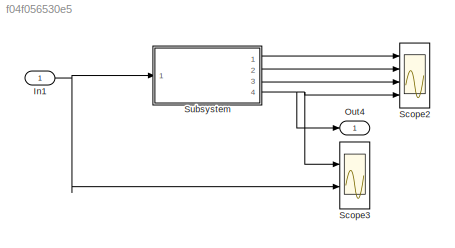
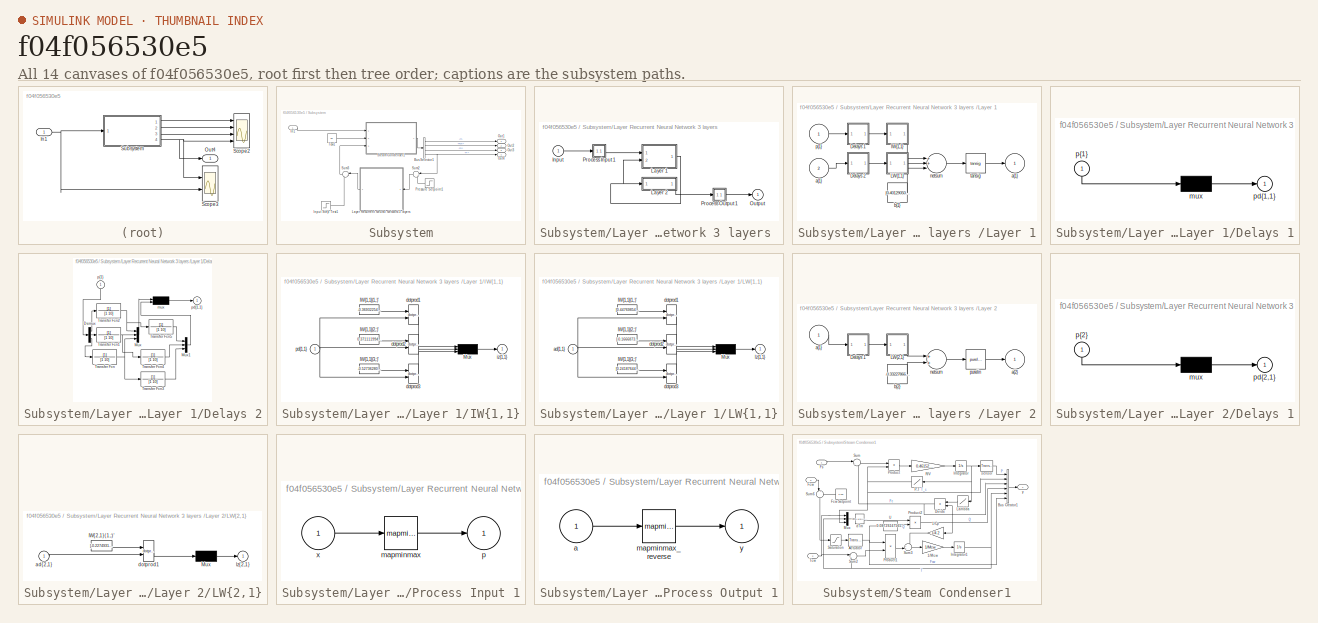
[diagram: thumbnail index - all 14 canvases of the model, root first then tree order]
MODEL slx_f04f056530e5
KIND model
CONFIG AbsTol = auto
CONFIG EnableMultiTasking = off
CONFIG FixedStep = 0.02
CONFIG MaxStep = .1
CONFIG MinStep = auto
CONFIG RelTol = 1e-3
CONFIG SampleTimeConstraint = Unconstrained
CONFIG Solver = VariableStepAuto
CONFIG SolverName = VariableStepAuto
CONFIG StartTime = 0.0
CONFIG StopTime = 40
WORKSPACE source: MAT-file member
WORKSPACE T = [0 0.05 0.1 0.15 0.2 0.25 0.3 0.35 0.4 0.45 0.5 0.55 ... (701 elements, 1x701)]
WORKSPACE U = [4.00260237998 4.00260790346 4.00261482483 4.00262313926 4.00263283344 4.00264388541 4.00265626434 4.0026699304 4.00268483464 4.00270091894 4.00271811597 4.0027363778 ... (701 elements, 1x701)]
BLOCK [Inport] In1
  IconDisplay = Port number
BLOCK [Outport] Out4
  IconDisplay = Port number
BLOCK [Scope] Scope2
  Floating = off
  NumInputPorts = 4
  Ports = [4]
  ScopeSpecificationString = Simulink.scopes.TimeScopeBlockCfg('CurrentConfiguration', extmgr.ConfigurationSet(extmgr.Configuration('Core','General UI',true),extmgr.Configuration('Core','Source UI',true),extmgr.Configuration('Sources','WiredSimulink',true,'DataLogging',true,'DataLoggingSaveFormat','StructureWithTime','DataLoggingDecimation','1','DataLoggingDecimateData',true),extmgr.Configuration('Visuals','Time Domain',true,...<+3699ch>
BLOCK [Scope] Scope3
  Floating = off
  NumInputPorts = 2
  Ports = [2]
  ScopeSpecificationString = Simulink.scopes.TimeScopeBlockCfg('CurrentConfiguration', extmgr.ConfigurationSet(extmgr.Configuration('Core','General UI',true),extmgr.Configuration('Core','Source UI',true),extmgr.Configuration('Sources','WiredSimulink',true,'DataLogging',true,'DataLoggingSaveFormat','StructureWithTime','DataLoggingDecimation','1','DataLoggingDecimateData',true,'DataLoggingVariableName','ScopeData1'),extmgr.Conf...<+2231ch>
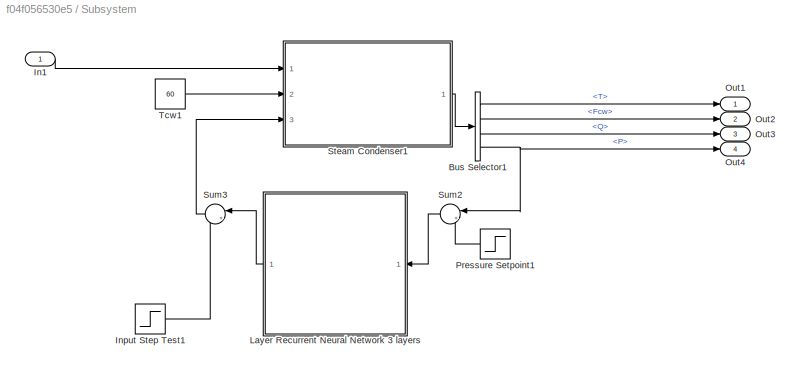
BLOCK [SubSystem] Subsystem
  Ports = [1, 4]
  RequestExecContextInheritance = off
BLOCK [BusSelector] Subsystem/Bus Selector1
  OutputAsBus = off
  OutputSignals = T,Fcw,Q,P
  Ports = [1, 4]
BLOCK [Inport] Subsystem/In1
  IconDisplay = Port number
BLOCK [Step] Subsystem/Input Step Test1
  After = 0
  SampleTime = 0
  Time = 10
BLOCK [SubSystem] Subsystem/Layer Recurrent Neural Network 3 layers 
  Ports = [1, 1]
  RequestExecContextInheritance = off
BLOCK [Inport] Subsystem/Layer Recurrent Neural Network 3 layers /Input
  IconDisplay = Port number
  PortDimensions = 1
BLOCK [SubSystem] Subsystem/Layer Recurrent Neural Network 3 layers /Layer 1
  Ports = [2, 1]
  RequestExecContextInheritance = off
BLOCK [SubSystem] Subsystem/Layer Recurrent Neural Network 3 layers /Layer 1/Delays 1
  Ports = [1, 1]
  RequestExecContextInheritance = off
BLOCK [Mux] Subsystem/Layer Recurrent Neural Network 3 layers /Layer 1/Delays 1/mux
  Inputs = 1
  Ports = [1, 1]
BLOCK [Outport] Subsystem/Layer Recurrent Neural Network 3 layers /Layer 1/Delays 1/pd{1,1}
  IconDisplay = Port number
BLOCK [Inport] Subsystem/Layer Recurrent Neural Network 3 layers /Layer 1/Delays 1/p{1}
  IconDisplay = Port number
  PortDimensions = 1
BLOCK [SubSystem] Subsystem/Layer Recurrent Neural Network 3 layers /Layer 1/Delays 2
  Ports = [1, 1]
  RequestExecContextInheritance = off
BLOCK [Demux] Subsystem/Layer Recurrent Neural Network 3 layers /Layer 1/Delays 2/Demux
  DisplayOption = bar
  Outputs = 3
  Ports = [1, 3]
BLOCK [Mux] Subsystem/Layer Recurrent Neural Network 3 layers /Layer 1/Delays 2/Mux
  DisplayOption = bar
  Inputs = 3
  Ports = [3, 1]
BLOCK [Mux] Subsystem/Layer Recurrent Neural Network 3 layers /Layer 1/Delays 2/Mux1
  DisplayOption = bar
  Inputs = 3
  Ports = [3, 1]
BLOCK [TransferFcn] Subsystem/Layer Recurrent Neural Network 3 layers /Layer 1/Delays 2/Transfer Fcn
  Denominator = [1 10]
BLOCK [TransferFcn] Subsystem/Layer Recurrent Neural Network 3 layers /Layer 1/Delays 2/Transfer Fcn1
  Denominator = [1 10]
BLOCK [TransferFcn] Subsystem/Layer Recurrent Neural Network 3 layers /Layer 1/Delays 2/Transfer Fcn2
  Denominator = [1 10]
BLOCK [TransferFcn] Subsystem/Layer Recurrent Neural Network 3 layers /Layer 1/Delays 2/Transfer Fcn3
  Denominator = [1 10]
BLOCK [TransferFcn] Subsystem/Layer Recurrent Neural Network 3 layers /Layer 1/Delays 2/Transfer Fcn4
  Denominator = [1 10]
BLOCK [TransferFcn] Subsystem/Layer Recurrent Neural Network 3 layers /Layer 1/Delays 2/Transfer Fcn5
  Denominator = [1 10]
BLOCK [Mux] Subsystem/Layer Recurrent Neural Network 3 layers /Layer 1/Delays 2/mux
  Inputs = 2
  Ports = [2, 1]
BLOCK [Outport] Subsystem/Layer Recurrent Neural Network 3 layers /Layer 1/Delays 2/pd{1,1}
  IconDisplay = Port number
BLOCK [Inport] Subsystem/Layer Recurrent Neural Network 3 layers /Layer 1/Delays 2/p{1}
  IconDisplay = Port number
  PortDimensions = 3
BLOCK [SubSystem] Subsystem/Layer Recurrent Neural Network 3 layers /Layer 1/IW{1,1}
  Ports = [1, 1]
  RequestExecContextInheritance = off
BLOCK [Constant] Subsystem/Layer Recurrent Neural Network 3 layers /Layer 1/IW{1,1}/IW{1,1}(1,:)'
  Value = -0.36932254958803395
BLOCK [Constant] Subsystem/Layer Recurrent Neural Network 3 layers /Layer 1/IW{1,1}/IW{1,1}(2,:)'
  Value = 0.37111199431650393
BLOCK [Constant] Subsystem/Layer Recurrent Neural Network 3 layers /Layer 1/IW{1,1}/IW{1,1}(3,:)'
  Value = -0.52736280584118833
BLOCK [Mux] Subsystem/Layer Recurrent Neural Network 3 layers /Layer 1/IW{1,1}/Mux
  Inputs = 3
  Ports = [3, 1]
BLOCK [Reference] Subsystem/Layer Recurrent Neural Network 3 layers /Layer 1/IW{1,1}/dotprod1  REF=neural/Weight Functions/dotprod
  Ports = [2, 1]
  SourceBlock = neural/Weight Functions/dotprod
  SourceProductBaseCode = NN
  SourceProductName = Deep Learning Toolbox
  SourceType = DOTPROD
BLOCK [Reference] Subsystem/Layer Recurrent Neural Network 3 layers /Layer 1/IW{1,1}/dotprod2  REF=neural/Weight Functions/dotprod
  Ports = [2, 1]
  SourceBlock = neural/Weight Functions/dotprod
  SourceProductBaseCode = NN
  SourceProductName = Deep Learning Toolbox
  SourceType = DOTPROD
BLOCK [Reference] Subsystem/Layer Recurrent Neural Network 3 layers /Layer 1/IW{1,1}/dotprod3  REF=neural/Weight Functions/dotprod
  Ports = [2, 1]
  SourceBlock = neural/Weight Functions/dotprod
  SourceProductBaseCode = NN
  SourceProductName = Deep Learning Toolbox
  SourceType = DOTPROD
BLOCK [Outport] Subsystem/Layer Recurrent Neural Network 3 layers /Layer 1/IW{1,1}/iz{1,1}
  IconDisplay = Port number
BLOCK [Inport] Subsystem/Layer Recurrent Neural Network 3 layers /Layer 1/IW{1,1}/pd{1,1}
  IconDisplay = Port number
  PortDimensions = 1
BLOCK [SubSystem] Subsystem/Layer Recurrent Neural Network 3 layers /Layer 1/LW{1,1}
  Ports = [1, 1]
  RequestExecContextInheritance = off
BLOCK [Constant] Subsystem/Layer Recurrent Neural Network 3 layers /Layer 1/LW{1,1}/IW{1,1}(1,:)'
  Value = [0.44769854454577174;1.1961840315574388;1.1412233787458486;0.72001623019786209;-0.37547125154051064;-0.61546760904874331]
BLOCK [Constant] Subsystem/Layer Recurrent Neural Network 3 layers /Layer 1/LW{1,1}/IW{1,1}(2,:)'
  Value = [-0.16668730359454359;-0.016432941671533533;-0.22132796342367161;-0.037206224095552992;0.059874671921603305;0.080202592729115826]
BLOCK [Constant] Subsystem/Layer Recurrent Neural Network 3 layers /Layer 1/LW{1,1}/IW{1,1}(3,:)'
  Value = [0.24187644262601646;-0.66963285238228187;-1.0984401489322673;0.029109804692608397;1.3722216833345802;0.66166906669524039]
BLOCK [Mux] Subsystem/Layer Recurrent Neural Network 3 layers /Layer 1/LW{1,1}/Mux
  Inputs = 3
  Ports = [3, 1]
BLOCK [Inport] Subsystem/Layer Recurrent Neural Network 3 layers /Layer 1/LW{1,1}/ad{1,1}
  IconDisplay = Port number
  PortDimensions = 6
BLOCK [Reference] Subsystem/Layer Recurrent Neural Network 3 layers /Layer 1/LW{1,1}/dotprod1  REF=neural/Weight Functions/dotprod
  Ports = [2, 1]
  SourceBlock = neural/Weight Functions/dotprod
  SourceProductBaseCode = NN
  SourceProductName = Deep Learning Toolbox
  SourceType = DOTPROD
BLOCK [Reference] Subsystem/Layer Recurrent Neural Network 3 layers /Layer 1/LW{1,1}/dotprod2  REF=neural/Weight Functions/dotprod
  Ports = [2, 1]
  SourceBlock = neural/Weight Functions/dotprod
  SourceProductBaseCode = NN
  SourceProductName = Deep Learning Toolbox
  SourceType = DOTPROD
BLOCK [Reference] Subsystem/Layer Recurrent Neural Network 3 layers /Layer 1/LW{1,1}/dotprod3  REF=neural/Weight Functions/dotprod
  Ports = [2, 1]
  SourceBlock = neural/Weight Functions/dotprod
  SourceProductBaseCode = NN
  SourceProductName = Deep Learning Toolbox
  SourceType = DOTPROD
BLOCK [Outport] Subsystem/Layer Recurrent Neural Network 3 layers /Layer 1/LW{1,1}/lz{1,1}
  IconDisplay = Port number
BLOCK [Outport] Subsystem/Layer Recurrent Neural Network 3 layers /Layer 1/a{1}
  IconDisplay = Port number
  InitialOutput = [0;0;0]
BLOCK [Inport] Subsystem/Layer Recurrent Neural Network 3 layers /Layer 1/a{1} 
  IconDisplay = Port number
  Port = 2
  PortDimensions = 3
BLOCK [Constant] Subsystem/Layer Recurrent Neural Network 3 layers /Layer 1/b{1}
  Value = [0.40129050296348601;-0.12475735064274925;-1.3584541012442735]
BLOCK [Sum] Subsystem/Layer Recurrent Neural Network 3 layers /Layer 1/netsum
  Inputs = 3
  Ports = [3, 1]
BLOCK [Inport] Subsystem/Layer Recurrent Neural Network 3 layers /Layer 1/p{1}
  IconDisplay = Port number
  PortDimensions = 1
BLOCK [Reference] Subsystem/Layer Recurrent Neural Network 3 layers /Layer 1/tansig  REF=neural/Transfer Functions/tansig
  Ports = [1, 1]
  SourceBlock = neural/Transfer Functions/tansig
  SourceProductBaseCode = NN
  SourceProductName = Deep Learning Toolbox
  SourceType = TANSIG
BLOCK [SubSystem] Subsystem/Layer Recurrent Neural Network 3 layers /Layer 2
  Ports = [1, 1]
  RequestExecContextInheritance = off
BLOCK [SubSystem] Subsystem/Layer Recurrent Neural Network 3 layers /Layer 2/Delays 1
  Ports = [1, 1]
  RequestExecContextInheritance = off
BLOCK [Mux] Subsystem/Layer Recurrent Neural Network 3 layers /Layer 2/Delays 1/mux
  Inputs = 1
  Ports = [1, 1]
BLOCK [Outport] Subsystem/Layer Recurrent Neural Network 3 layers /Layer 2/Delays 1/pd{2,1}
  IconDisplay = Port number
BLOCK [Inport] Subsystem/Layer Recurrent Neural Network 3 layers /Layer 2/Delays 1/p{2}
  IconDisplay = Port number
  PortDimensions = 3
BLOCK [SubSystem] Subsystem/Layer Recurrent Neural Network 3 layers /Layer 2/LW{2,1}
  Ports = [1, 1]
  RequestExecContextInheritance = off
BLOCK [Constant] Subsystem/Layer Recurrent Neural Network 3 layers /Layer 2/LW{2,1}/IW{2,1}(1,:)'
  Value = [-0.22749313555095124;2.0804967759906643;-0.56644809886208158]
BLOCK [Mux] Subsystem/Layer Recurrent Neural Network 3 layers /Layer 2/LW{2,1}/Mux
  Inputs = 1
  Ports = [1, 1]
BLOCK [Inport] Subsystem/Layer Recurrent Neural Network 3 layers /Layer 2/LW{2,1}/ad{2,1}
  IconDisplay = Port number
  PortDimensions = 3
BLOCK [Reference] Subsystem/Layer Recurrent Neural Network 3 layers /Layer 2/LW{2,1}/dotprod1  REF=neural/Weight Functions/dotprod
  Ports = [2, 1]
  SourceBlock = neural/Weight Functions/dotprod
  SourceProductBaseCode = NN
  SourceProductName = Deep Learning Toolbox
  SourceType = DOTPROD
BLOCK [Outport] Subsystem/Layer Recurrent Neural Network 3 layers /Layer 2/LW{2,1}/lz{2,1}
  IconDisplay = Port number
BLOCK [Inport] Subsystem/Layer Recurrent Neural Network 3 layers /Layer 2/a{1} 
  IconDisplay = Port number
  PortDimensions = 3
BLOCK [Outport] Subsystem/Layer Recurrent Neural Network 3 layers /Layer 2/a{2}
  IconDisplay = Port number
  InitialOutput = 0
BLOCK [Constant] Subsystem/Layer Recurrent Neural Network 3 layers /Layer 2/b{2}
  Value = -0.33227866684137108
BLOCK [Sum] Subsystem/Layer Recurrent Neural Network 3 layers /Layer 2/netsum
  Inputs = 2
  Ports = [2, 1]
BLOCK [Reference] Subsystem/Layer Recurrent Neural Network 3 layers /Layer 2/purelin  REF=neural/Transfer Functions/purelin
  Ports = [1, 1]
  SourceBlock = neural/Transfer Functions/purelin
  SourceProductBaseCode = NN
  SourceProductName = Deep Learning Toolbox
  SourceType = PURELIN
BLOCK [Outport] Subsystem/Layer Recurrent Neural Network 3 layers /Output
  IconDisplay = Port number
  InitialOutput = 0
BLOCK [SubSystem] Subsystem/Layer Recurrent Neural Network 3 layers /Process Input 1
  Ports = [1, 1]
  RequestExecContextInheritance = off
BLOCK [Reference] Subsystem/Layer Recurrent Neural Network 3 layers /Process Input 1/mapminmax  REF=neural/Processing Functions/mapminmax
  Ports = [1, 1]
  SourceBlock = neural/Processing Functions/mapminmax
  SourceProductBaseCode = NN
  SourceProductName = Deep Learning Toolbox
  SourceType = MAPMINMAX Preprocess
BLOCK [Outport] Subsystem/Layer Recurrent Neural Network 3 layers /Process Input 1/p
  IconDisplay = Port number
  PortDimensions = 1
BLOCK [Inport] Subsystem/Layer Recurrent Neural Network 3 layers /Process Input 1/x
  IconDisplay = Port number
  PortDimensions = 1
BLOCK [SubSystem] Subsystem/Layer Recurrent Neural Network 3 layers /Process Output 1
  Ports = [1, 1]
  RequestExecContextInheritance = off
BLOCK [Inport] Subsystem/Layer Recurrent Neural Network 3 layers /Process Output 1/a
  IconDisplay = Port number
  PortDimensions = 1
BLOCK [Reference] Subsystem/Layer Recurrent Neural Network 3 layers /Process Output 1/mapminmax_reverse  REF=neural/Processing Functions/mapminmax_reverse
  Ports = [1, 1]
  SourceBlock = neural/Processing Functions/mapminmax_reverse
  SourceProductBaseCode = NN
  SourceProductName = Deep Learning Toolbox
  SourceType = MAPMINMAX Reverse Process
BLOCK [Outport] Subsystem/Layer Recurrent Neural Network 3 layers /Process Output 1/y
  IconDisplay = Port number
  PortDimensions = 1
BLOCK [Outport] Subsystem/Out1
  IconDisplay = Port number
BLOCK [Outport] Subsystem/Out2
  IconDisplay = Port number
  Port = 2
BLOCK [Outport] Subsystem/Out3
  IconDisplay = Port number
  Port = 3
BLOCK [Outport] Subsystem/Out4
  IconDisplay = Port number
  Port = 4
BLOCK [Step] Subsystem/Pressure Setpoint1
  After = 87
  Before = 90
  SampleTime = 0
  Time = 2
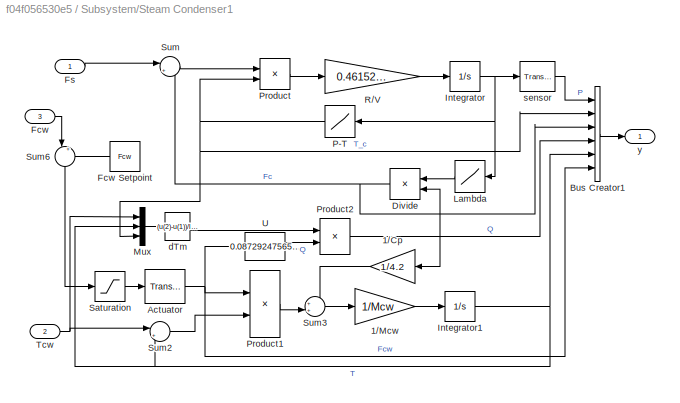
BLOCK [SubSystem] Subsystem/Steam Condenser1
  Ports = [3, 1]
  RequestExecContextInheritance = off
BLOCK [Gain] Subsystem/Steam Condenser1/1//Cp
  Gain = 1/4.2
  SaturateOnIntegerOverflow = off
BLOCK [Gain] Subsystem/Steam Condenser1/1//Mcw
  Gain = 1/Mcw
  SaturateOnIntegerOverflow = off
BLOCK [Reference] Subsystem/Steam Condenser1/Actuator  REF=simulink_extras/Additional
Linear/Transfer Fcn
(with initial outputs)
  Ports = [1, 1]
  SourceBlock = simulink_extras/Additional\nLinear/Transfer Fcn\n(with initial outputs)
  SourceProductBaseCode = SL
  SourceProductName = Simulink
  SourceType = Transfer Function with Initial Outputs
BLOCK [BusCreator] Subsystem/Steam Condenser1/Bus Creator1
  DisplayOption = bar
  InheritFromInputs = on
  Inputs = 6
  Ports = [6, 1]
BLOCK [Product] Subsystem/Steam Condenser1/Divide
  Inputs = /*
  Ports = [2, 1]
  SaturateOnIntegerOverflow = off
BLOCK [Inport] Subsystem/Steam Condenser1/Fcw
  IconDisplay = Port number
  Port = 3
BLOCK [Constant] Subsystem/Steam Condenser1/Fcw Setpoint
  Value = Fcw
BLOCK [Inport] Subsystem/Steam Condenser1/Fs
  IconDisplay = Port number
BLOCK [Integrator] Subsystem/Steam Condenser1/Integrator
  InitialCondition = P
  Ports = [1, 1]
BLOCK [Integrator] Subsystem/Steam Condenser1/Integrator1
  InitialCondition = T
  Ports = [1, 1]
BLOCK [Lookup] Subsystem/Steam Condenser1/Lambda
  InputValues = [50 60 70 80 90 100 110]
  Table = [2305.42 2293.64 2283.30 2274.05 2265.65 2257.92 2250.76]
BLOCK [Mux] Subsystem/Steam Condenser1/Mux
  DisplayOption = bar
  Inputs = 3
  Ports = [3, 1]
BLOCK [Lookup] Subsystem/Steam Condenser1/P-T
  InputValues = [50 60 70 80 90 100 110]
  Table = [81.3167 85.9258 89.9315 93.4854 96.6870 99.6059 102.2923]
BLOCK [Product] Subsystem/Steam Condenser1/Product
  Ports = [2, 1]
  SaturateOnIntegerOverflow = off
BLOCK [Product] Subsystem/Steam Condenser1/Product1
  Ports = [2, 1]
  SaturateOnIntegerOverflow = off
BLOCK [Product] Subsystem/Steam Condenser1/Product2
  Inputs = */
  Ports = [2, 1]
  SaturateOnIntegerOverflow = off
BLOCK [Gain] Subsystem/Steam Condenser1/R//V
  Gain = 0.461526/V
  SaturateOnIntegerOverflow = off
BLOCK [Saturate] Subsystem/Steam Condenser1/Saturation
  InputPortMap = u0
  LowerLimit = 0
  Ports = [1, 1]
  UpperLimit = 200
BLOCK [Sum] Subsystem/Steam Condenser1/Sum
  IconShape = round
  Inputs = |+-
  Ports = [2, 1]
  SaturateOnIntegerOverflow = off
BLOCK [Sum] Subsystem/Steam Condenser1/Sum2
  IconShape = round
  Inputs = |+-
  Ports = [2, 1]
  SaturateOnIntegerOverflow = off
BLOCK [Sum] Subsystem/Steam Condenser1/Sum3
  IconShape = round
  Inputs = ++|
  Ports = [2, 1]
  SaturateOnIntegerOverflow = off
BLOCK [Sum] Subsystem/Steam Condenser1/Sum6
  IconShape = round
  Inputs = |++
  Ports = [2, 1]
  SaturateOnIntegerOverflow = off
BLOCK [Inport] Subsystem/Steam Condenser1/Tcw
  IconDisplay = Port number
  Port = 2
BLOCK [Fcn] Subsystem/Steam Condenser1/U
  Expr = 0.0872924756541668/u^0.8+0.00073786772008033
BLOCK [Fcn] Subsystem/Steam Condenser1/dTm
  Expr = (u(2)-u(1))/log((u(3)-u(1))/(u(3)-u(2)))
BLOCK [Reference] Subsystem/Steam Condenser1/sensor  REF=simulink_extras/Additional
Linear/Transfer Fcn
(with initial outputs)
  Ports = [1, 1]
  SourceBlock = simulink_extras/Additional\nLinear/Transfer Fcn\n(with initial outputs)
  SourceProductBaseCode = SL
  SourceProductName = Simulink
  SourceType = Transfer Function with Initial Outputs
BLOCK [Outport] Subsystem/Steam Condenser1/y
  IconDisplay = Port number
BLOCK [Sum] Subsystem/Sum2
  IconShape = round
  Inputs = |+-
  Ports = [2, 1]
  SaturateOnIntegerOverflow = off
BLOCK [Sum] Subsystem/Sum3
  IconShape = round
  Inputs = |++
  Ports = [2, 1]
  SaturateOnIntegerOverflow = off
BLOCK [Constant] Subsystem/Tcw1
  Value = 60
  VectorParams1D = off
NET In1:1 -> Scope3:2, Subsystem:1
LINE Subsystem/Bus Selector1:1 -> Subsystem/Out1:1
LINE Subsystem/Bus Selector1:2 -> Subsystem/Out2:1
LINE Subsystem/Bus Selector1:3 -> Subsystem/Out3:1
NET Subsystem/Bus Selector1:4 -> Subsystem/Out4:1, Subsystem/Sum2:1
LINE Subsystem/In1:1 -> Subsystem/Steam Condenser1:1
LINE Subsystem/Input Step Test1:1 -> Subsystem/Sum3:2
LINE Subsystem/Layer Recurrent Neural Network 3 layers /Input:1 -> Subsystem/Layer Recurrent Neural Network 3 layers /Process Input 1:1
LINE Subsystem/Layer Recurrent Neural Network 3 layers /Layer 1/Delays 1/mux:1 -> Subsystem/Layer Recurrent Neural Network 3 layers /Layer 1/Delays 1/pd{1,1}:1
LINE Subsystem/Layer Recurrent Neural Network 3 layers /Layer 1/Delays 1/p{1}:1 -> Subsystem/Layer Recurrent Neural Network 3 layers /Layer 1/Delays 1/mux:1
LINE Subsystem/Layer Recurrent Neural Network 3 layers /Layer 1/Delays 1:1 -> Subsystem/Layer Recurrent Neural Network 3 layers /Layer 1/IW{1,1}:1
LINE Subsystem/Layer Recurrent Neural Network 3 layers /Layer 1/Delays 2/Demux:1 -> Subsystem/Layer Recurrent Neural Network 3 layers /Layer 1/Delays 2/Transfer Fcn2:1
LINE Subsystem/Layer Recurrent Neural Network 3 layers /Layer 1/Delays 2/Demux:2 -> Subsystem/Layer Recurrent Neural Network 3 layers /Layer 1/Delays 2/Transfer Fcn1:1
LINE Subsystem/Layer Recurrent Neural Network 3 layers /Layer 1/Delays 2/Demux:3 -> Subsystem/Layer Recurrent Neural Network 3 layers /Layer 1/Delays 2/Transfer Fcn:1
LINE Subsystem/Layer Recurrent Neural Network 3 layers /Layer 1/Delays 2/Mux1:1 -> Subsystem/Layer Recurrent Neural Network 3 layers /Layer 1/Delays 2/mux:2
LINE Subsystem/Layer Recurrent Neural Network 3 layers /Layer 1/Delays 2/Mux:1 -> Subsystem/Layer Recurrent Neural Network 3 layers /Layer 1/Delays 2/mux:1
NET Subsystem/Layer Recurrent Neural Network 3 layers /Layer 1/Delays 2/Transfer Fcn1:1 -> Subsystem/Layer Recurrent Neural Network 3 layers /Layer 1/Delays 2/Mux:2, Subsystem/Layer Recurrent Neural Network 3 layers /Layer 1/Delays 2/Transfer Fcn4:1
NET Subsystem/Layer Recurrent Neural Network 3 layers /Layer 1/Delays 2/Transfer Fcn2:1 -> Subsystem/Layer Recurrent Neural Network 3 layers /Layer 1/Delays 2/Mux:1, Subsystem/Layer Recurrent Neural Network 3 layers /Layer 1/Delays 2/Transfer Fcn5:1
LINE Subsystem/Layer Recurrent Neural Network 3 layers /Layer 1/Delays 2/Transfer Fcn3:1 -> Subsystem/Layer Recurrent Neural Network 3 layers /Layer 1/Delays 2/Mux1:3
LINE Subsystem/Layer Recurrent Neural Network 3 layers /Layer 1/Delays 2/Transfer Fcn4:1 -> Subsystem/Layer Recurrent Neural Network 3 layers /Layer 1/Delays 2/Mux1:2
LINE Subsystem/Layer Recurrent Neural Network 3 layers /Layer 1/Delays 2/Transfer Fcn5:1 -> Subsystem/Layer Recurrent Neural Network 3 layers /Layer 1/Delays 2/Mux1:1
NET Subsystem/Layer Recurrent Neural Network 3 layers /Layer 1/Delays 2/Transfer Fcn:1 -> Subsystem/Layer Recurrent Neural Network 3 layers /Layer 1/Delays 2/Mux:3, Subsystem/Layer Recurrent Neural Network 3 layers /Layer 1/Delays 2/Transfer Fcn3:1
LINE Subsystem/Layer Recurrent Neural Network 3 layers /Layer 1/Delays 2/mux:1 -> Subsystem/Layer Recurrent Neural Network 3 layers /Layer 1/Delays 2/pd{1,1}:1
LINE Subsystem/Layer Recurrent Neural Network 3 layers /Layer 1/Delays 2/p{1}:1 -> Subsystem/Layer Recurrent Neural Network 3 layers /Layer 1/Delays 2/Demux:1
LINE Subsystem/Layer Recurrent Neural Network 3 layers /Layer 1/Delays 2:1 -> Subsystem/Layer Recurrent Neural Network 3 layers /Layer 1/LW{1,1}:1
LINE Subsystem/Layer Recurrent Neural Network 3 layers /Layer 1/IW{1,1}/IW{1,1}(1,:)':1 -> Subsystem/Layer Recurrent Neural Network 3 layers /Layer 1/IW{1,1}/dotprod1:1
LINE Subsystem/Layer Recurrent Neural Network 3 layers /Layer 1/IW{1,1}/IW{1,1}(2,:)':1 -> Subsystem/Layer Recurrent Neural Network 3 layers /Layer 1/IW{1,1}/dotprod2:1
LINE Subsystem/Layer Recurrent Neural Network 3 layers /Layer 1/IW{1,1}/IW{1,1}(3,:)':1 -> Subsystem/Layer Recurrent Neural Network 3 layers /Layer 1/IW{1,1}/dotprod3:1
LINE Subsystem/Layer Recurrent Neural Network 3 layers /Layer 1/IW{1,1}/Mux:1 -> Subsystem/Layer Recurrent Neural Network 3 layers /Layer 1/IW{1,1}/iz{1,1}:1
LINE Subsystem/Layer Recurrent Neural Network 3 layers /Layer 1/IW{1,1}/dotprod1:1 -> Subsystem/Layer Recurrent Neural Network 3 layers /Layer 1/IW{1,1}/Mux:1
LINE Subsystem/Layer Recurrent Neural Network 3 layers /Layer 1/IW{1,1}/dotprod2:1 -> Subsystem/Layer Recurrent Neural Network 3 layers /Layer 1/IW{1,1}/Mux:2
LINE Subsystem/Layer Recurrent Neural Network 3 layers /Layer 1/IW{1,1}/dotprod3:1 -> Subsystem/Layer Recurrent Neural Network 3 layers /Layer 1/IW{1,1}/Mux:3
NET Subsystem/Layer Recurrent Neural Network 3 layers /Layer 1/IW{1,1}/pd{1,1}:1 -> Subsystem/Layer Recurrent Neural Network 3 layers /Layer 1/IW{1,1}/dotprod1:2, Subsystem/Layer Recurrent Neural Network 3 layers /Layer 1/IW{1,1}/dotprod2:2, Subsystem/Layer Recurrent Neural Network 3 layers /Layer 1/IW{1,1}/dotprod3:2
LINE Subsystem/Layer Recurrent Neural Network 3 layers /Layer 1/IW{1,1}:1 -> Subsystem/Layer Recurrent Neural Network 3 layers /Layer 1/netsum:1
LINE Subsystem/Layer Recurrent Neural Network 3 layers /Layer 1/LW{1,1}/IW{1,1}(1,:)':1 -> Subsystem/Layer Recurrent Neural Network 3 layers /Layer 1/LW{1,1}/dotprod1:1
LINE Subsystem/Layer Recurrent Neural Network 3 layers /Layer 1/LW{1,1}/IW{1,1}(2,:)':1 -> Subsystem/Layer Recurrent Neural Network 3 layers /Layer 1/LW{1,1}/dotprod2:1
LINE Subsystem/Layer Recurrent Neural Network 3 layers /Layer 1/LW{1,1}/IW{1,1}(3,:)':1 -> Subsystem/Layer Recurrent Neural Network 3 layers /Layer 1/LW{1,1}/dotprod3:1
LINE Subsystem/Layer Recurrent Neural Network 3 layers /Layer 1/LW{1,1}/Mux:1 -> Subsystem/Layer Recurrent Neural Network 3 layers /Layer 1/LW{1,1}/lz{1,1}:1
NET Subsystem/Layer Recurrent Neural Network 3 layers /Layer 1/LW{1,1}/ad{1,1}:1 -> Subsystem/Layer Recurrent Neural Network 3 layers /Layer 1/LW{1,1}/dotprod1:2, Subsystem/Layer Recurrent Neural Network 3 layers /Layer 1/LW{1,1}/dotprod2:2, Subsystem/Layer Recurrent Neural Network 3 layers /Layer 1/LW{1,1}/dotprod3:2
LINE Subsystem/Layer Recurrent Neural Network 3 layers /Layer 1/LW{1,1}/dotprod1:1 -> Subsystem/Layer Recurrent Neural Network 3 layers /Layer 1/LW{1,1}/Mux:1
LINE Subsystem/Layer Recurrent Neural Network 3 layers /Layer 1/LW{1,1}/dotprod2:1 -> Subsystem/Layer Recurrent Neural Network 3 layers /Layer 1/LW{1,1}/Mux:2
LINE Subsystem/Layer Recurrent Neural Network 3 layers /Layer 1/LW{1,1}/dotprod3:1 -> Subsystem/Layer Recurrent Neural Network 3 layers /Layer 1/LW{1,1}/Mux:3
LINE Subsystem/Layer Recurrent Neural Network 3 layers /Layer 1/LW{1,1}:1 -> Subsystem/Layer Recurrent Neural Network 3 layers /Layer 1/netsum:2
LINE Subsystem/Layer Recurrent Neural Network 3 layers /Layer 1/a{1} :1 -> Subsystem/Layer Recurrent Neural Network 3 layers /Layer 1/Delays 2:1
LINE Subsystem/Layer Recurrent Neural Network 3 layers /Layer 1/b{1}:1 -> Subsystem/Layer Recurrent Neural Network 3 layers /Layer 1/netsum:3
LINE Subsystem/Layer Recurrent Neural Network 3 layers /Layer 1/netsum:1 -> Subsystem/Layer Recurrent Neural Network 3 layers /Layer 1/tansig:1
LINE Subsystem/Layer Recurrent Neural Network 3 layers /Layer 1/p{1}:1 -> Subsystem/Layer Recurrent Neural Network 3 layers /Layer 1/Delays 1:1
LINE Subsystem/Layer Recurrent Neural Network 3 layers /Layer 1/tansig:1 -> Subsystem/Layer Recurrent Neural Network 3 layers /Layer 1/a{1}:1
NET Subsystem/Layer Recurrent Neural Network 3 layers /Layer 1:1 -> Subsystem/Layer Recurrent Neural Network 3 layers /Layer 1:2, Subsystem/Layer Recurrent Neural Network 3 layers /Layer 2:1
LINE Subsystem/Layer Recurrent Neural Network 3 layers /Layer 2/Delays 1/mux:1 -> Subsystem/Layer Recurrent Neural Network 3 layers /Layer 2/Delays 1/pd{2,1}:1
LINE Subsystem/Layer Recurrent Neural Network 3 layers /Layer 2/Delays 1/p{2}:1 -> Subsystem/Layer Recurrent Neural Network 3 layers /Layer 2/Delays 1/mux:1
LINE Subsystem/Layer Recurrent Neural Network 3 layers /Layer 2/Delays 1:1 -> Subsystem/Layer Recurrent Neural Network 3 layers /Layer 2/LW{2,1}:1
LINE Subsystem/Layer Recurrent Neural Network 3 layers /Layer 2/LW{2,1}/IW{2,1}(1,:)':1 -> Subsystem/Layer Recurrent Neural Network 3 layers /Layer 2/LW{2,1}/dotprod1:1
LINE Subsystem/Layer Recurrent Neural Network 3 layers /Layer 2/LW{2,1}/Mux:1 -> Subsystem/Layer Recurrent Neural Network 3 layers /Layer 2/LW{2,1}/lz{2,1}:1
LINE Subsystem/Layer Recurrent Neural Network 3 layers /Layer 2/LW{2,1}/ad{2,1}:1 -> Subsystem/Layer Recurrent Neural Network 3 layers /Layer 2/LW{2,1}/dotprod1:2
LINE Subsystem/Layer Recurrent Neural Network 3 layers /Layer 2/LW{2,1}/dotprod1:1 -> Subsystem/Layer Recurrent Neural Network 3 layers /Layer 2/LW{2,1}/Mux:1
LINE Subsystem/Layer Recurrent Neural Network 3 layers /Layer 2/LW{2,1}:1 -> Subsystem/Layer Recurrent Neural Network 3 layers /Layer 2/netsum:1
LINE Subsystem/Layer Recurrent Neural Network 3 layers /Layer 2/a{1} :1 -> Subsystem/Layer Recurrent Neural Network 3 layers /Layer 2/Delays 1:1
LINE Subsystem/Layer Recurrent Neural Network 3 layers /Layer 2/b{2}:1 -> Subsystem/Layer Recurrent Neural Network 3 layers /Layer 2/netsum:2
LINE Subsystem/Layer Recurrent Neural Network 3 layers /Layer 2/netsum:1 -> Subsystem/Layer Recurrent Neural Network 3 layers /Layer 2/purelin:1
LINE Subsystem/Layer Recurrent Neural Network 3 layers /Layer 2/purelin:1 -> Subsystem/Layer Recurrent Neural Network 3 layers /Layer 2/a{2}:1
LINE Subsystem/Layer Recurrent Neural Network 3 layers /Layer 2:1 -> Subsystem/Layer Recurrent Neural Network 3 layers /Process Output 1:1
LINE Subsystem/Layer Recurrent Neural Network 3 layers /Process Input 1/mapminmax:1 -> Subsystem/Layer Recurrent Neural Network 3 layers /Process Input 1/p:1
LINE Subsystem/Layer Recurrent Neural Network 3 layers /Process Input 1/x:1 -> Subsystem/Layer Recurrent Neural Network 3 layers /Process Input 1/mapminmax:1
LINE Subsystem/Layer Recurrent Neural Network 3 layers /Process Input 1:1 -> Subsystem/Layer Recurrent Neural Network 3 layers /Layer 1:1
LINE Subsystem/Layer Recurrent Neural Network 3 layers /Process Output 1/a:1 -> Subsystem/Layer Recurrent Neural Network 3 layers /Process Output 1/mapminmax_reverse:1
LINE Subsystem/Layer Recurrent Neural Network 3 layers /Process Output 1/mapminmax_reverse:1 -> Subsystem/Layer Recurrent Neural Network 3 layers /Process Output 1/y:1
LINE Subsystem/Layer Recurrent Neural Network 3 layers /Process Output 1:1 -> Subsystem/Layer Recurrent Neural Network 3 layers /Output:1
LINE Subsystem/Layer Recurrent Neural Network 3 layers :1 -> Subsystem/Sum3:1
LINE Subsystem/Pressure Setpoint1:1 -> Subsystem/Sum2:2
LINE Subsystem/Steam Condenser1/1//Cp:1 -> Subsystem/Steam Condenser1/Sum3:1
LINE Subsystem/Steam Condenser1/1//Mcw:1 -> Subsystem/Steam Condenser1/Integrator1:1
NET Subsystem/Steam Condenser1/Actuator:1 -> Subsystem/Steam Condenser1/Bus Creator1:6, Subsystem/Steam Condenser1/Product1:1, Subsystem/Steam Condenser1/U:1
LINE Subsystem/Steam Condenser1/Bus Creator1:1 -> Subsystem/Steam Condenser1/y:1
NET Subsystem/Steam Condenser1/Divide:1 -> Subsystem/Steam Condenser1/Bus Creator1:3, Subsystem/Steam Condenser1/Sum:2
LINE Subsystem/Steam Condenser1/Fcw Setpoint:1 -> Subsystem/Steam Condenser1/Sum6:2
LINE Subsystem/Steam Condenser1/Fcw:1 -> Subsystem/Steam Condenser1/Sum6:1
LINE Subsystem/Steam Condenser1/Fs:1 -> Subsystem/Steam Condenser1/Sum:1
NET Subsystem/Steam Condenser1/Integrator1:1 -> Subsystem/Steam Condenser1/Bus Creator1:5, Subsystem/Steam Condenser1/Mux:2, Subsystem/Steam Condenser1/Sum2:2
NET Subsystem/Steam Condenser1/Integrator:1 -> Subsystem/Steam Condenser1/Lambda:1, Subsystem/Steam Condenser1/P-T:1, Subsystem/Steam Condenser1/sensor:1
LINE Subsystem/Steam Condenser1/Lambda:1 -> Subsystem/Steam Condenser1/Divide:1
LINE Subsystem/Steam Condenser1/Mux:1 -> Subsystem/Steam Condenser1/dTm:1
NET Subsystem/Steam Condenser1/P-T:1 -> Subsystem/Steam Condenser1/Bus Creator1:2, Subsystem/Steam Condenser1/Mux:3, Subsystem/Steam Condenser1/Product:2
LINE Subsystem/Steam Condenser1/Product1:1 -> Subsystem/Steam Condenser1/Sum3:2
NET Subsystem/Steam Condenser1/Product2:1 -> Subsystem/Steam Condenser1/1//Cp:1, Subsystem/Steam Condenser1/Bus Creator1:4, Subsystem/Steam Condenser1/Divide:2
LINE Subsystem/Steam Condenser1/Product:1 -> Subsystem/Steam Condenser1/R//V:1
LINE Subsystem/Steam Condenser1/R//V:1 -> Subsystem/Steam Condenser1/Integrator:1
LINE Subsystem/Steam Condenser1/Saturation:1 -> Subsystem/Steam Condenser1/Actuator:1
LINE Subsystem/Steam Condenser1/Sum2:1 -> Subsystem/Steam Condenser1/Product1:2
LINE Subsystem/Steam Condenser1/Sum3:1 -> Subsystem/Steam Condenser1/1//Mcw:1
LINE Subsystem/Steam Condenser1/Sum6:1 -> Subsystem/Steam Condenser1/Saturation:1
LINE Subsystem/Steam Condenser1/Sum:1 -> Subsystem/Steam Condenser1/Product:1
NET Subsystem/Steam Condenser1/Tcw:1 -> Subsystem/Steam Condenser1/Mux:1, Subsystem/Steam Condenser1/Sum2:1
LINE Subsystem/Steam Condenser1/U:1 -> Subsystem/Steam Condenser1/Product2:2
LINE Subsystem/Steam Condenser1/dTm:1 -> Subsystem/Steam Condenser1/Product2:1
LINE Subsystem/Steam Condenser1/sensor:1 -> Subsystem/Steam Condenser1/Bus Creator1:1
LINE Subsystem/Steam Condenser1:1 -> Subsystem/Bus Selector1:1
LINE Subsystem/Sum2:1 -> Subsystem/Layer Recurrent Neural Network 3 layers :1
LINE Subsystem/Sum3:1 -> Subsystem/Steam Condenser1:3
LINE Subsystem/Tcw1:1 -> Subsystem/Steam Condenser1:2
LINE Subsystem:1 -> Scope2:1
LINE Subsystem:2 -> Scope2:2
LINE Subsystem:3 -> Scope2:3
NET Subsystem:4 -> Out4:1, Scope2:4, Scope3:1
note: NET lines group one-source signal fan-out (src -> all destinations, sorted); 1:1 wires keep LINE
